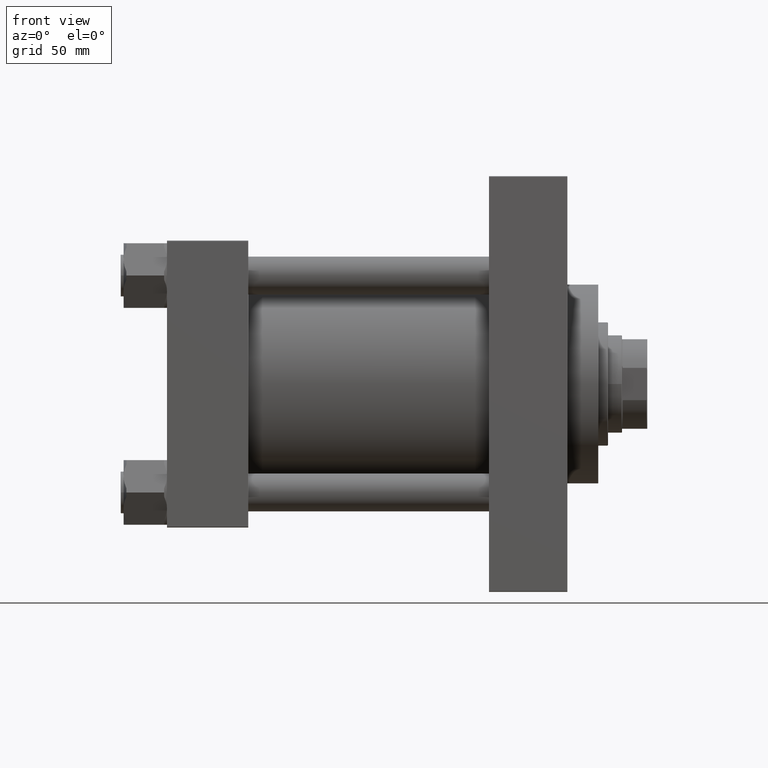
[diagram: clean part render]
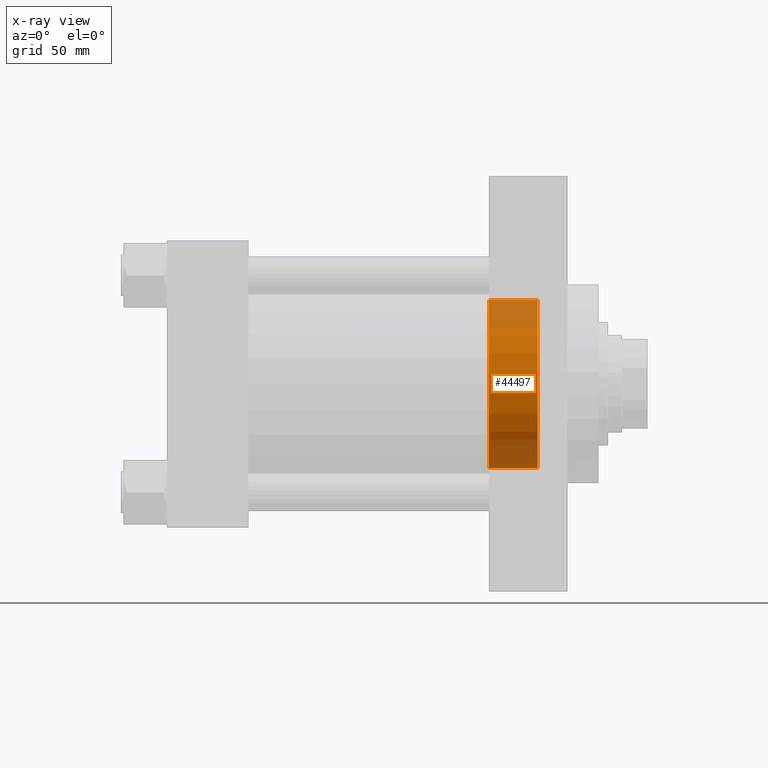
[diagram: x-ray — body ghosted, one internal face saturated and labeled with its STEP entity id]
A machine part, front view, then the same camera in x-ray: the body is ghosted and one INTERNAL B-rep face — a face not visible from any outside direction — is saturated and labeled: STEP entity #44497.
In plain terms, the highlighted cylindrical surface (partial cylindrical patch) has radius 60 mm, axis along (1, 0, 0).
Its self-contained STEP definition (entity closure, byte-faithful):
#976 = CARTESIAN_POINT ( 'NONE',  ( 229.9999999999999716, 7.347880794884118356E-15, 60.00000000000000000 ) ) ;
#1182 = ORIENTED_EDGE ( 'NONE', *, *, #26775, .F. ) ;
#2397 = CARTESIAN_POINT ( 'NONE',  ( 264.7399999999999523, 0.000000000000000000, -60.00000000000000000 ) ) ;
#2819 = VERTEX_POINT ( 'NONE', #2397 ) ;
#5961 = DIRECTION ( 'NONE',  ( 1.000000000000000000, 0.000000000000000000, 0.000000000000000000 ) ) ;
#9574 = DIRECTION ( 'NONE',  ( 0.000000000000000000, 0.000000000000000000, -1.000000000000000000 ) ) ;
#10905 = EDGE_LOOP ( 'NONE', ( #23219, #13946, #36810, #1182 ) ) ;
#11699 = CIRCLE ( 'NONE', #34819, 60.00000000000000000 ) ;
#12503 = DIRECTION ( 'NONE',  ( 0.000000000000000000, 0.000000000000000000, -1.000000000000000000 ) ) ;
#13946 = ORIENTED_EDGE ( 'NONE', *, *, #35230, .T. ) ;
#16134 = VERTEX_POINT ( 'NONE', #976 ) ;
#17790 = CARTESIAN_POINT ( 'NONE',  ( 264.7399999999999523, 7.347880794884118356E-15, 60.00000000000000000 ) ) ;
#18706 = LINE ( 'NONE', #29790, #36006 ) ;
#19502 = CARTESIAN_POINT ( 'NONE',  ( -111.7056274847714121, 0.000000000000000000, 0.000000000000000000 ) ) ;
#21810 = CARTESIAN_POINT ( 'NONE',  ( 229.9999999999999716, 0.000000000000000000, -60.00000000000000000 ) ) ;
#21978 = CARTESIAN_POINT ( 'NONE',  ( 229.9999999999999716, 0.000000000000000000, 0.000000000000000000 ) ) ;
#23219 = ORIENTED_EDGE ( 'NONE', *, *, #39854, .T. ) ;
#23350 = FACE_OUTER_BOUND ( 'NONE', #10905, .T. ) ;
#24633 = LINE ( 'NONE', #29199, #43227 ) ;
#25663 = AXIS2_PLACEMENT_3D ( 'NONE', #19502, #34196, #12503 ) ;
#26180 = DIRECTION ( 'NONE',  ( 1.000000000000000000, -0.000000000000000000, -0.000000000000000000 ) ) ;
#26775 = EDGE_CURVE ( 'NONE', #28015, #2819, #18706, .T. ) ;
#27668 = VERTEX_POINT ( 'NONE', #17790 ) ;
#28015 = VERTEX_POINT ( 'NONE', #21810 ) ;
#29199 = CARTESIAN_POINT ( 'NONE',  ( -111.7056274847714121, 7.347880794884118356E-15, 60.00000000000000000 ) ) ;
#29790 = CARTESIAN_POINT ( 'NONE',  ( -111.7056274847714121, 0.000000000000000000, -60.00000000000000000 ) ) ;
#32379 = DIRECTION ( 'NONE',  ( -1.000000000000000000, 0.000000000000000000, -0.000000000000000000 ) ) ;
#34196 = DIRECTION ( 'NONE',  ( 1.000000000000000000, -0.000000000000000000, -0.000000000000000000 ) ) ;
#34819 = AXIS2_PLACEMENT_3D ( 'NONE', #36107, #5961, #9574 ) ;
#35230 = EDGE_CURVE ( 'NONE', #16134, #27668, #24633, .T. ) ;
#35721 = DIRECTION ( 'NONE',  ( 1.000000000000000000, -0.000000000000000000, -0.000000000000000000 ) ) ;
#36006 = VECTOR ( 'NONE', #26180, 1000.000000000000000 ) ;
#36107 = CARTESIAN_POINT ( 'NONE',  ( 264.7399999999999523, 0.000000000000000000, 0.000000000000000000 ) ) ;
#36810 = ORIENTED_EDGE ( 'NONE', *, *, #42630, .T. ) ;
#37815 = CYLINDRICAL_SURFACE ( 'NONE', #25663, 60.00000000000000000 ) ;
#39854 = EDGE_CURVE ( 'NONE', #28015, #16134, #47084, .T. ) ;
#40150 = AXIS2_PLACEMENT_3D ( 'NONE', #21978, #32379, #47086 ) ;
#42630 = EDGE_CURVE ( 'NONE', #27668, #2819, #11699, .T. ) ;
#43227 = VECTOR ( 'NONE', #35721, 1000.000000000000000 ) ;
#44497 = ADVANCED_FACE ( 'NONE', ( #23350 ), #37815, .F. ) ;
#47084 = CIRCLE ( 'NONE', #40150, 60.00000000000000000 ) ;
#47086 = DIRECTION ( 'NONE',  ( 0.000000000000000000, 0.000000000000000000, 1.000000000000000000 ) ) ;